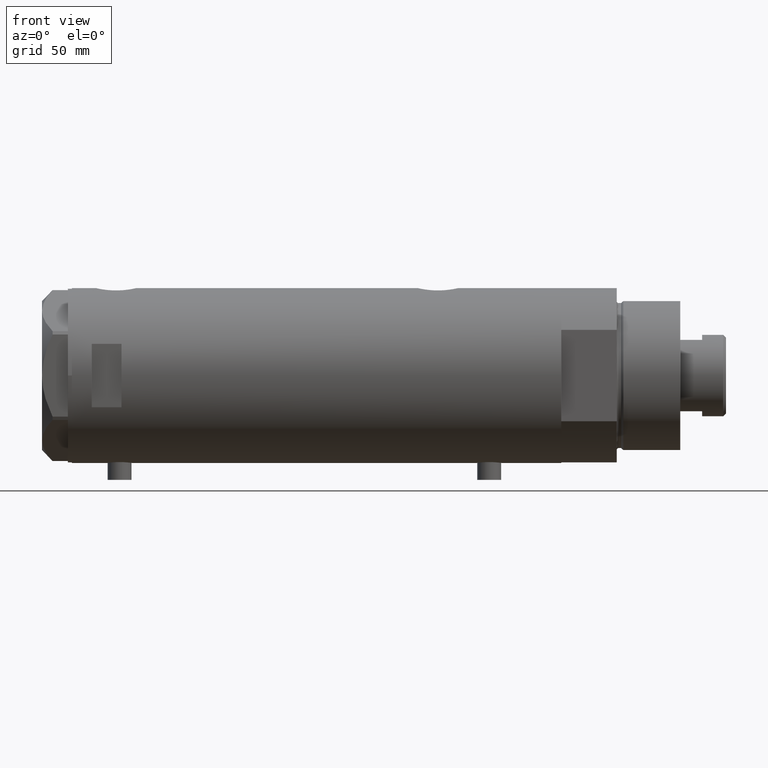
[diagram: clean part render]
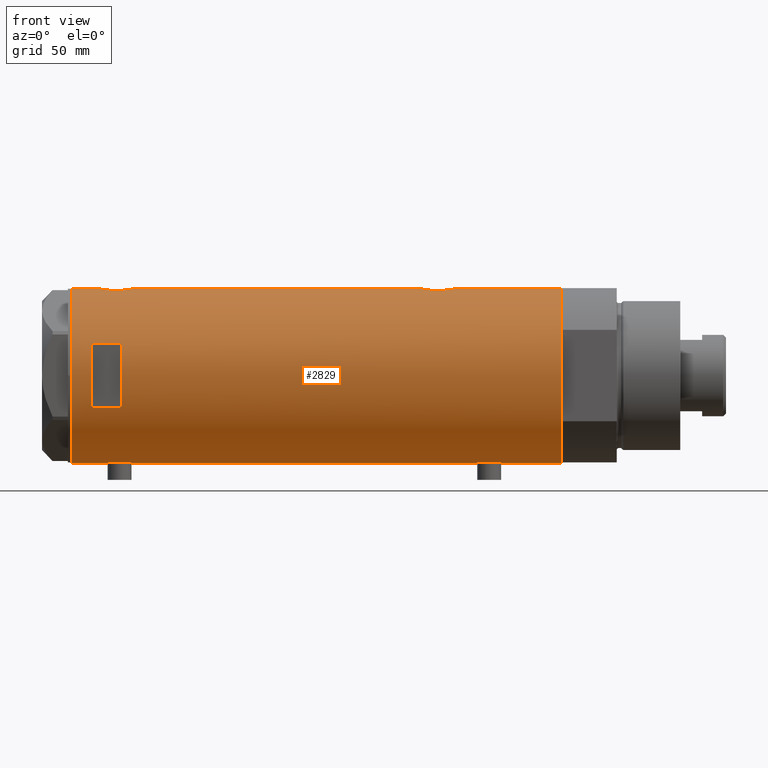
[diagram: same view with one face highlighted and labeled with its STEP entity id]
A machine part, front view. The second image highlights one B-rep face of the part: STEP entity #2829.
In plain terms, the highlighted cylindrical surface (partial cylindrical patch) has radius 44 mm, axis along (-1, -0, 0).
Its self-contained STEP definition (entity closure, byte-faithful):
#37 = CARTESIAN_POINT ( 'NONE',  ( 43.71626298452613923, -5.019105827807316622, -69.77413437979598143 ) ) ;
#64 = CARTESIAN_POINT ( 'NONE',  ( 43.35323102813806173, -7.519449998269467805, -54.49957710715733583 ) ) ;
#98 = VERTEX_POINT ( 'NONE', #1873 ) ;
#114 = CARTESIAN_POINT ( 'NONE',  ( -43.80686114384899810, -4.128296917151111245, 94.48984144871687363 ) ) ;
#120 = CARTESIAN_POINT ( 'NONE',  ( -43.66469451360046605, -5.426465874727614214, -83.77225408135791440 ) ) ;
#125 = CARTESIAN_POINT ( 'NONE',  ( -44.00000000000000000, 5.388445916248352830E-15, -123.2000000000000028 ) ) ;
#143 = CARTESIAN_POINT ( 'NONE',  ( -43.59994860325051036, -5.920144153815573240, 97.18593642430241175 ) ) ;
#147 = CARTESIAN_POINT ( 'NONE',  ( -43.71863308610073773, -4.973248429199020215, -83.09262209878829708 ) ) ;
#164 = CARTESIAN_POINT ( 'NONE',  ( -43.60904414879381363, -5.852991024272606424, 101.4015631665291437 ) ) ;
#168 = CARTESIAN_POINT ( 'NONE',  ( -43.59994860325051036, -5.920144153815573240, -88.91406357569761099 ) ) ;
#190 = CARTESIAN_POINT ( 'NONE',  ( -44.00000000000000711, -0.4080709675389188051, 92.95000000000001705 ) ) ;
#255 = CARTESIAN_POINT ( 'NONE',  ( -44.00000000000000000, 5.388445916248352830E-15, 123.2000000000000028 ) ) ;
#280 = CARTESIAN_POINT ( 'NONE',  ( 42.84860178791322483, -9.999866241079297779, 101.2339638269416326 ) ) ;
#316 = CARTESIAN_POINT ( 'NONE',  ( 43.94187300917954531, -2.283844398366606132, -70.84126046817048916 ) ) ;
#334 = CARTESIAN_POINT ( 'NONE',  ( 0.000000000000000000, 0.000000000000000000, 98.20000000000017337 ) ) ;
#340 = CARTESIAN_POINT ( 'NONE',  ( 42.99316244204495518, -9.359736474891656499, -57.56396979967825445 ) ) ;
#346 = VERTEX_POINT ( 'NONE', #2156 ) ;
#381 = VERTEX_POINT ( 'NONE', #4347 ) ;
#393 = VERTEX_POINT ( 'NONE', #864 ) ;
#399 = VECTOR ( 'NONE', #3320, 1000.000000000000000 ) ;
#413 = CARTESIAN_POINT ( 'NONE',  ( 43.13689707656755701, -8.680169016269177362, -66.10836902111202562 ) ) ;
#464 = CARTESIAN_POINT ( 'NONE',  ( 43.98543813568863214, -1.304985013906734714, 110.8365306627388378 ) ) ;
#466 = CARTESIAN_POINT ( 'NONE',  ( -43.99432382855036394, -0.8140126287075738487, 92.98957833183087018 ) ) ;
#470 = CARTESIAN_POINT ( 'NONE',  ( -43.58327167020068060, -6.041691433183235205, -85.28672449216634277 ) ) ;
#489 = ORIENTED_EDGE ( 'NONE', *, *, #1925, .F. ) ;
#497 = CARTESIAN_POINT ( 'NONE',  ( -43.57636709704393496, -6.091127289750673413, -85.48500674339014438 ) ) ;
#511 = CARTESIAN_POINT ( 'NONE',  ( 42.96858625215907779, -9.471543237354833167, 104.1244477931078194 ) ) ;
#513 = CARTESIAN_POINT ( 'NONE',  ( -43.58327167020068771, -6.041691433183236981, 100.8132755078336658 ) ) ;
#518 = CARTESIAN_POINT ( 'NONE',  ( -43.55380622335315621, -6.250277076879245719, -86.49110166609810335 ) ) ;
#539 = ORIENTED_EDGE ( 'NONE', *, *, #4128, .F. ) ;
#541 = CARTESIAN_POINT ( 'NONE',  ( -43.91347832647111460, -2.763895659397271221, -92.50938649377584966 ) ) ;
#548 = VERTEX_POINT ( 'NONE', #3199 ) ;
#559 = VECTOR ( 'NONE', #3039, 1000.000000000000000 ) ;
#561 = CARTESIAN_POINT ( 'NONE',  ( -43.95442538259509035, -2.011679190499021441, 93.27906453490220429 ) ) ;
#565 = DIRECTION ( 'NONE',  ( 0.000000000000000000, 0.000000000000000000, 1.000000000000000000 ) ) ;
#583 = ORIENTED_EDGE ( 'NONE', *, *, #1371, .F. ) ;
#601 = CARTESIAN_POINT ( 'NONE',  ( 42.92195198079052432, -9.681069926205539744, 98.31067499093484230 ) ) ;
#633 = EDGE_CURVE ( 'NONE', #1946, #98, #1272, .T. ) ;
#638 = CARTESIAN_POINT ( 'NONE',  ( 43.46477581456304051, -6.845969322274853219, 93.60355539876690045 ) ) ;
#659 = CARTESIAN_POINT ( 'NONE',  ( 43.88203303552250389, -3.235230624304763047, 91.43207386936016690 ) ) ;
#660 = CARTESIAN_POINT ( 'NONE',  ( -43.74813644611200658, -4.709999724143498767, 103.3284404394322848 ) ) ;
#676 = CARTESIAN_POINT ( 'NONE',  ( 43.07447880731470491, -8.980869115410037296, -56.65290029795897198 ) ) ;
#685 = DIRECTION ( 'NONE',  ( 1.000000000000000000, 0.000000000000000000, 0.000000000000000000 ) ) ;
#699 = CARTESIAN_POINT ( 'NONE',  ( 44.00000000000000000, 0.000000000000000000, -123.2000000000000028 ) ) ;
#733 = LINE ( 'NONE', #3830, #3136 ) ;
#734 = CARTESIAN_POINT ( 'NONE',  ( 44.00000000000000000, -0.6537011444665492554, -51.09999999999999432 ) ) ;
#783 = CARTESIAN_POINT ( 'NONE',  ( 43.50208939911752282, -6.605519787823896039, -68.61487246254429806 ) ) ;
#799 = B_SPLINE_CURVE_WITH_KNOTS ( 'NONE', 3,
 ( #4407, #4335, #844, #874, #3010, #1264, #2614, #541, #3354, #820, #1191, #3989, #1239, #1915, #2264, #3334, #1558, #168, #3671, #2670, #3644, #1573, #518, #1869, #497, #470, #899, #3285, #1895, #120, #147, #2985, #4042, #1637, #1364, #4169, #3776, #2333, #4082, #4485, #2770, #1303, #1026 ),
 .UNSPECIFIED., .F., .F.,
 ( 4, 2, 2, 1, 2, 2, 2, 2, 2, 2, 2, 2, 2, 2, 2, 2, 2, 2, 2, 2, 2, 4 ),
 ( 0.01956509074799517994, 0.02078761141254040559, 0.02139887174481301668, 0.02201013207708562777, 0.02262139240935823886, 0.02323265274163085342, 0.02445517340617609989, 0.02567769407072134635, 0.02690021473526659282, 0.02751147506753921432, 0.02812273539981183929, 0.02934525606435712738, 0.03056777672890241548, 0.03117903706117505780, 0.03179029739344770011, 0.03301281805799302638, 0.03423533872253835264, 0.03545785938708367196, 0.03668038005162899823, 0.03729164038390166136, 0.03790290071617432449, 0.03912542138071965075 ),
 .UNSPECIFIED. ) ;
#820 = CARTESIAN_POINT ( 'NONE',  ( -43.87623998657197433, -3.302247739865014964, -92.21034343519743004 ) ) ;
#844 = CARTESIAN_POINT ( 'NONE',  ( -43.99432382855035684, -0.8140126287075731826, -93.11042166816913834 ) ) ;
#856 = CIRCLE ( 'NONE', #1298, 44.00000000000000000 ) ;
#864 = CARTESIAN_POINT ( 'NONE',  ( -15.96871942267132027, -40.99999999999999289, 113.1999999999999886 ) ) ;
#867 = CARTESIAN_POINT ( 'NONE',  ( 43.24269204559828239, -8.130405600641543273, 106.7311450280699319 ) ) ;
#874 = CARTESIAN_POINT ( 'NONE',  ( -43.97755541524607281, -1.419649999726221967, -92.99011143923634393 ) ) ;
#880 = EDGE_CURVE ( 'NONE', #2077, #2675, #3847, .T. ) ;
#895 = CARTESIAN_POINT ( 'NONE',  ( -43.57636709704395628, -6.091127289750674301, 100.6149932566099068 ) ) ;
#899 = CARTESIAN_POINT ( 'NONE',  ( -43.59959777593761743, -5.922725608094073557, -84.89350688782587895 ) ) ;
#913 = CARTESIAN_POINT ( 'NONE',  ( -43.83572624786197025, -3.813948911733267888, 94.23163569779339355 ) ) ;
#921 = DIRECTION ( 'NONE',  ( 0.000000000000000000, 0.000000000000000000, 1.000000000000000000 ) ) ;
#934 = CARTESIAN_POINT ( 'NONE',  ( -43.99417593155911987, -0.8219945290704643304, 105.4093810241296296 ) ) ;
#951 = EDGE_CURVE ( 'NONE', #3827, #346, #2964, .T. ) ;
#956 = CARTESIAN_POINT ( 'NONE',  ( 42.96573602780769363, -9.487415353952517449, 97.67265455416384157 ) ) ;
#970 = EDGE_CURVE ( 'NONE', #2281, #4295, #3453, .T. ) ;
#994 = CARTESIAN_POINT ( 'NONE',  ( 44.00000000000000000, -2.119006702872526837E-15, 90.90000000000000568 ) ) ;
#996 = CARTESIAN_POINT ( 'NONE',  ( -43.94477385411916970, -2.211843467998030111, 105.0490722992286692 ) ) ;
#1018 = CARTESIAN_POINT ( 'NONE',  ( 43.39001814939471302, -7.304817421876466987, 94.06296539328327810 ) ) ;
#1026 = CARTESIAN_POINT ( 'NONE',  ( -44.00000000000000000, 4.742402805755500961E-16, -80.65000000000000568 ) ) ;
#1033 = EDGE_CURVE ( 'NONE', #3384, #2675, #4293, .T. ) ;
#1038 = CARTESIAN_POINT ( 'NONE',  ( 43.57790701154751645, -6.104591320335877924, -53.15258699105065432 ) ) ;
#1061 = CARTESIAN_POINT ( 'NONE',  ( 43.50370990764397305, -6.606474645717129945, -53.56479064715112770 ) ) ;
#1069 = VECTOR ( 'NONE', #1358, 1000.000000000000000 ) ;
#1086 = CARTESIAN_POINT ( 'NONE',  ( 43.24192112218941730, -8.134529092006104634, -66.92552229864111268 ) ) ;
#1094 = DIRECTION ( 'NONE',  ( 0.000000000000000000, 0.000000000000000000, 1.000000000000000000 ) ) ;
#1125 = VERTEX_POINT ( 'NONE', #2659 ) ;
#1172 = ORIENTED_EDGE ( 'NONE', *, *, #633, .T. ) ;
#1191 = CARTESIAN_POINT ( 'NONE',  ( -43.83572624786197025, -3.813948911733269664, -91.86836430220658656 ) ) ;
#1206 = CARTESIAN_POINT ( 'NONE',  ( 43.99999999999999289, -0.6537011444665493665, 110.9000000000000057 ) ) ;
#1225 = DIRECTION ( 'NONE',  ( 1.000000000000000000, 0.000000000000000000, 0.000000000000000000 ) ) ;
#1235 = CARTESIAN_POINT ( 'NONE',  ( -43.71863308610075904, -4.973248429199019327, 103.0073779012117541 ) ) ;
#1236 = VERTEX_POINT ( 'NONE', #4071 ) ;
#1239 = CARTESIAN_POINT ( 'NONE',  ( -43.74870614644073896, -4.704745394280564597, -91.03446487340028170 ) ) ;
#1260 = CARTESIAN_POINT ( 'NONE',  ( 43.13833976206233700, -8.672905216733552081, 105.9203292102081804 ) ) ;
#1261 = CARTESIAN_POINT ( 'NONE',  ( -43.88927795770376861, -3.124736516396338981, 93.78332595076190614 ) ) ;
#1264 = CARTESIAN_POINT ( 'NONE',  ( -43.95442538259509746, -2.011679190499022774, -92.82093546509779003 ) ) ;
#1272 = LINE ( 'NONE', #3297, #399 ) ;
#1298 = AXIS2_PLACEMENT_3D ( 'NONE', #3699, #1924, #1225 ) ;
#1303 = CARTESIAN_POINT ( 'NONE',  ( -44.00000000000000711, -0.4134142287044829667, -80.65000000000003411 ) ) ;
#1320 = CARTESIAN_POINT ( 'NONE',  ( 43.61181667275830875, -5.838254419127776096, 92.77455890582506015 ) ) ;
#1321 = CARTESIAN_POINT ( 'NONE',  ( -43.80623767923739820, -4.134861581628530125, 103.9043636726069764 ) ) ;
#1332 = DIRECTION ( 'NONE',  ( -0.000000000000000000, -0.000000000000000000, -1.000000000000000000 ) ) ;
#1338 = CARTESIAN_POINT ( 'NONE',  ( 43.77905627191557159, -4.445085099228552217, 91.91859165683966637 ) ) ;
#1345 = LINE ( 'NONE', #1370, #4031 ) ;
#1358 = DIRECTION ( 'NONE',  ( 0.000000000000000000, 0.000000000000000000, 1.000000000000000000 ) ) ;
#1364 = CARTESIAN_POINT ( 'NONE',  ( -43.88932649443424339, -3.137583818903200594, -81.47900961940457876 ) ) ;
#1370 = CARTESIAN_POINT ( 'NONE',  ( -44.00000000000000000, 5.388445916248352830E-15, -123.2000000000000028 ) ) ;
#1371 = EDGE_CURVE ( 'NONE', #3688, #3772, #1648, .T. ) ;
#1407 = CARTESIAN_POINT ( 'NONE',  ( 43.27890888111422640, -7.936045294464967093, -55.00681563342806868 ) ) ;
#1409 = DIRECTION ( 'NONE',  ( 0.000000000000000000, 0.000000000000000000, 1.000000000000000000 ) ) ;
#1416 = CARTESIAN_POINT ( 'NONE',  ( 15.96871942267132027, -40.99999999999999289, 98.19999999999998863 ) ) ;
#1421 = CARTESIAN_POINT ( 'NONE',  ( 44.00000000000000000, -3.917104602093038540E-21, 110.9000000000000057 ) ) ;
#1430 = CARTESIAN_POINT ( 'NONE',  ( 42.86369059155249062, -9.935849517229280892, -62.40637410018199915 ) ) ;
#1458 = CARTESIAN_POINT ( 'NONE',  ( 43.71528002050703066, -5.005885132985644859, -52.43693693285515423 ) ) ;
#1479 = CARTESIAN_POINT ( 'NONE',  ( 42.92195198079052432, -9.681069926205545073, -63.68932500906514349 ) ) ;
#1527 = AXIS2_PLACEMENT_3D ( 'NONE', #4013, #565, #4356 ) ;
#1532 = CARTESIAN_POINT ( 'NONE',  ( 43.39114022679085281, -7.298186114522533074, 107.7441727949206438 ) ) ;
#1558 = CARTESIAN_POINT ( 'NONE',  ( -43.60943079847655213, -5.850114217193378430, -89.10921875926607072 ) ) ;
#1569 = CARTESIAN_POINT ( 'NONE',  ( 42.92612181419235640, -9.662173761604311295, 103.4979978960971465 ) ) ;
#1570 = CARTESIAN_POINT ( 'NONE',  ( -43.64013512596971367, -5.618144550806293047, 101.9688425437316539 ) ) ;
#1573 = CARTESIAN_POINT ( 'NONE',  ( -43.55388615229803406, -6.249720082677240107, -87.31732514111985211 ) ) ;
#1584 = EDGE_LOOP ( 'NONE', ( #3678, #4486, #1172, #539, #2154, #3238, #2668, #4057, #2436, #2714, #3896, #2968 ) ) ;
#1614 = CARTESIAN_POINT ( 'NONE',  ( -43.97029046111977379, -1.628482392291941805, 105.2375861979205922 ) ) ;
#1637 = CARTESIAN_POINT ( 'NONE',  ( -43.83513771791773905, -3.820747781112549646, -81.93678981703629916 ) ) ;
#1648 = CIRCLE ( 'NONE', #3923, 44.00000000000000000 ) ;
#1678 = CARTESIAN_POINT ( 'NONE',  ( 43.24192112218942441, -8.134529092006104634, 95.07447770135891574 ) ) ;
#1680 = CARTESIAN_POINT ( 'NONE',  ( -43.88932649443422918, -3.137583818903200594, 104.6209903805954298 ) ) ;
#1692 = CARTESIAN_POINT ( 'NONE',  ( 15.96871942267131672, -40.99999999999999289, -123.2000000000000028 ) ) ;
#1717 = CARTESIAN_POINT ( 'NONE',  ( 43.98503203903424463, -1.316644100880400403, -71.03472955295633540 ) ) ;
#1760 = DIRECTION ( 'NONE',  ( 0.000000000000000000, 0.000000000000000000, 1.000000000000000000 ) ) ;
#1766 = CARTESIAN_POINT ( 'NONE',  ( 44.00000000000000000, -3.917167710965456221E-21, -51.10000000000000853 ) ) ;
#1782 = EDGE_CURVE ( 'NONE', #548, #393, #856, .T. ) ;
#1813 = CARTESIAN_POINT ( 'NONE',  ( 43.39001814939470592, -7.304817421876451888, -67.93703460671676453 ) ) ;
#1865 = CARTESIAN_POINT ( 'NONE',  ( 43.57790701154752355, -6.104591320335876148, 108.8474130089493457 ) ) ;
#1869 = CARTESIAN_POINT ( 'NONE',  ( -43.55964145621771877, -6.209995197331128480, -86.08476386616429465 ) ) ;
#1873 = CARTESIAN_POINT ( 'NONE',  ( 44.00000000000000000, -1.742910476879209922E-15, -71.10000000000000853 ) ) ;
#1895 = CARTESIAN_POINT ( 'NONE',  ( -43.64013512596970656, -5.618144550806293047, -84.13115745626835462 ) ) ;
#1897 = EDGE_CURVE ( 'NONE', #3772, #548, #4092, .T. ) ;
#1901 = ORIENTED_EDGE ( 'NONE', *, *, #1897, .F. ) ;
#1910 = CARTESIAN_POINT ( 'NONE',  ( -43.55981666146651321, -6.208773019004409477, 98.37562000806386209 ) ) ;
#1915 = CARTESIAN_POINT ( 'NONE',  ( -43.71916086763248899, -4.968610719017467758, -90.71335998854627292 ) ) ;
#1924 = DIRECTION ( 'NONE',  ( -0.000000000000000000, 0.000000000000000000, -1.000000000000000000 ) ) ;
#1925 = EDGE_CURVE ( 'NONE', #393, #3688, #2694, .T. ) ;
#1944 = CARTESIAN_POINT ( 'NONE',  ( -15.96871942267132027, -40.99999999999999289, 98.19999999999998863 ) ) ;
#1946 = VERTEX_POINT ( 'NONE', #3446 ) ;
#1989 = CARTESIAN_POINT ( 'NONE',  ( 43.07321175413310499, -8.986876637256992595, 96.46571798011248688 ) ) ;
#1990 = CARTESIAN_POINT ( 'NONE',  ( -43.83513771791773195, -3.820747781112552754, 104.1632101829637378 ) ) ;
#2011 = CARTESIAN_POINT ( 'NONE',  ( 43.57553740812846144, -6.102230194686623754, 92.97100344011330719 ) ) ;
#2033 = CARTESIAN_POINT ( 'NONE',  ( -44.00000000000000711, -0.4134142287044841879, 105.4500000000000313 ) ) ;
#2050 = DIRECTION ( 'NONE',  ( 0.000000000000000000, 0.000000000000000000, 1.000000000000000000 ) ) ;
#2051 = CARTESIAN_POINT ( 'NONE',  ( 44.00000000000000000, -0.6628808997490054367, 90.90000000000001990 ) ) ;
#2054 = ORIENTED_EDGE ( 'NONE', *, *, #1782, .F. ) ;
#2072 = AXIS2_PLACEMENT_3D ( 'NONE', #4547, #1409, #2809 ) ;
#2074 = CARTESIAN_POINT ( 'NONE',  ( 42.89003040145176726, -9.821289533110936887, -59.13508371670006625 ) ) ;
#2077 = VERTEX_POINT ( 'NONE', #1421 ) ;
#2104 = CARTESIAN_POINT ( 'NONE',  ( 43.39114022679083860, -7.298186114522538404, -54.25582720507937751 ) ) ;
#2128 = CARTESIAN_POINT ( 'NONE',  ( 43.57553740812844723, -6.102230194686620202, -69.02899655988672123 ) ) ;
#2151 = CARTESIAN_POINT ( 'NONE',  ( 43.92776409818818451, -2.602555515054471247, -51.42196650712919137 ) ) ;
#2154 = ORIENTED_EDGE ( 'NONE', *, *, #970, .T. ) ;
#2156 = CARTESIAN_POINT ( 'NONE',  ( -44.00000000000000000, 4.945856149313706956E-16, 105.4500000000000171 ) ) ;
#2180 = CARTESIAN_POINT ( 'NONE',  ( 43.92391465552168484, -2.605621203777297001, -70.76018015101780634 ) ) ;
#2231 = CARTESIAN_POINT ( 'NONE',  ( -43.57664920749030557, -6.089110472216500369, 97.77636913130585583 ) ) ;
#2236 = FACE_BOUND ( 'NONE', #2845, .T. ) ;
#2260 = CARTESIAN_POINT ( 'NONE',  ( -43.97059312650997498, -1.620278982928819556, 93.16021308614132579 ) ) ;
#2264 = CARTESIAN_POINT ( 'NONE',  ( -43.66524845950889500, -5.422010366683132965, -90.03538043352982356 ) ) ;
#2281 = VERTEX_POINT ( 'NONE', #4334 ) ;
#2283 = CARTESIAN_POINT ( 'NONE',  ( 43.71528002050701645, -5.005885132985632424, 109.5630630671448813 ) ) ;
#2305 = CARTESIAN_POINT ( 'NONE',  ( -44.00000000000000000, 5.388445781982983516E-15, 92.95000000000000284 ) ) ;
#2325 = B_SPLINE_CURVE_WITH_KNOTS ( 'NONE', 3,
 ( #3612, #1206, #464, #3636, #4375, #2663, #3277, #2283, #4401, #1865, #4350, #1532, #2609, #4006, #867, #1260, #4052, #3665, #511, #1569, #2980, #3433, #2365, #280, #3070, #4100, #601, #956, #1989, #2387, #1678, #2740, #2348, #1018, #638, #4076, #2011, #1320, #3813, #1338, #3730, #659, #3045, #3413, #3792, #2051, #994 ),
 .UNSPECIFIED., .F., .F.,
 ( 4, 2, 2, 2, 2, 2, 2, 2, 2, 2, 1, 2, 2, 2, 2, 2, 2, 2, 2, 2, 2, 2, 2, 4 ),
 ( 0.03136730421198211799, 0.03332724096696803445, 0.03528717772195395785, 0.03626714609944691609, 0.03724711447693987432, 0.03920705123192579078, 0.04018701960941873513, 0.04116698798691167949, 0.04312692474189759595, 0.04410689311939056112, 0.04508686149688351935, 0.04606682987437648452, 0.04704679825186944275, 0.04900673500685531758, 0.05096667176184120629, 0.05292660851682708112, 0.05390657689432002547, 0.05488654527181296983, 0.05586651364930590724, 0.05684648202679884466, 0.05880641878178471949, 0.05978638715927767078, 0.06076635553677062207, 0.06272629229175652465 ),
 .UNSPECIFIED. ) ;
#2333 = CARTESIAN_POINT ( 'NONE',  ( -43.95404166778754984, -2.020054257598467018, -80.98191054514347798 ) ) ;
#2348 = CARTESIAN_POINT ( 'NONE',  ( 43.35257225115236679, -7.523216248090024649, 94.30394696407654465 ) ) ;
#2365 = CARTESIAN_POINT ( 'NONE',  ( 42.85249883256043546, -9.983208936152870194, 101.5657221654182081 ) ) ;
#2387 = CARTESIAN_POINT ( 'NONE',  ( 43.13689707656756411, -8.680169016269172033, 95.89163097888801701 ) ) ;
#2433 = CARTESIAN_POINT ( 'NONE',  ( 43.68175117880464597, -5.289576318274436417, -52.60722456708441541 ) ) ;
#2436 = ORIENTED_EDGE ( 'NONE', *, *, #4532, .F. ) ;
#2458 = CARTESIAN_POINT ( 'NONE',  ( 42.84850870634925712, -10.00026508230968858, -61.75583915121742251 ) ) ;
#2487 = CARTESIAN_POINT ( 'NONE',  ( 43.27861175590267351, -7.937636171351968528, -67.19102867990997652 ) ) ;
#2532 = CARTESIAN_POINT ( 'NONE',  ( 43.80655905412561424, -4.132395729537631901, -51.98794673806236233 ) ) ;
#2543 = VECTOR ( 'NONE', #1332, 1000.000000000000000 ) ;
#2567 = CARTESIAN_POINT ( 'NONE',  ( -43.64064219598290606, -5.614224114468903792, 96.42314510380529669 ) ) ;
#2590 = CARTESIAN_POINT ( 'NONE',  ( -43.60943079847654502, -5.850114217193380206, 96.99078124073395202 ) ) ;
#2609 = CARTESIAN_POINT ( 'NONE',  ( 43.35323102813806884, -7.519449998269471358, 107.5004228928426784 ) ) ;
#2614 = CARTESIAN_POINT ( 'NONE',  ( -43.93596008603758207, -2.395372424984026694, -92.68349180530613296 ) ) ;
#2636 = CARTESIAN_POINT ( 'NONE',  ( -43.93596008603759628, -2.395372424984027138, 93.41650819469390399 ) ) ;
#2659 = CARTESIAN_POINT ( 'NONE',  ( -44.00000000000000000, 5.388445781982983516E-15, -93.15000000000000568 ) ) ;
#2663 = CARTESIAN_POINT ( 'NONE',  ( 43.80655905412561424, -4.132395729537624796, 110.0120532619376235 ) ) ;
#2668 = ORIENTED_EDGE ( 'NONE', *, *, #880, .T. ) ;
#2670 = CARTESIAN_POINT ( 'NONE',  ( -43.57664920749031268, -6.089110472216499481, -88.32363086869412427 ) ) ;
#2675 = VERTEX_POINT ( 'NONE', #3745 ) ;
#2694 = LINE ( 'NONE', #3364, #2543 ) ;
#2714 = ORIENTED_EDGE ( 'NONE', *, *, #951, .F. ) ;
#2715 = B_SPLINE_CURVE_WITH_KNOTS ( 'NONE', 3,
 ( #1766, #734, #3150, #2151, #4186, #2532, #4545, #1458, #2433, #1038, #1061, #2104, #64, #1407, #4521, #3563, #676, #340, #2788, #3174, #2074, #2855, #3494, #2806, #2458, #1430, #1479, #4209, #4234, #413, #1086, #2487, #3883, #1813, #3222, #783, #2128, #3543, #37, #3203, #4262, #4280, #2180, #316, #1717, #3128, #3681 ),
 .UNSPECIFIED., .F., .F.,
 ( 4, 2, 2, 2, 2, 2, 2, 2, 2, 2, 1, 2, 2, 2, 2, 2, 2, 2, 2, 2, 2, 2, 2, 4 ),
 ( 0.03136730421198213187, 0.03332724096696806221, 0.03528717772195399255, 0.03626714609944695078, 0.03724711447693991595, 0.03920705123192583241, 0.04018701960941878371, 0.04116698798691173500, 0.04312692474189763758, 0.04410689311939058888, 0.04508686149688354017, 0.04606682987437649146, 0.04704679825186944275, 0.04900673500685532452, 0.05096667176184120629, 0.05292660851682708806, 0.05390657689432004629, 0.05488654527181299758, 0.05586651364930594887, 0.05684648202679890711, 0.05880641878178481663, 0.05978638715927775404, 0.06076635553677070534, 0.06272629229175658017 ),
 .UNSPECIFIED. ) ;
#2740 = CARTESIAN_POINT ( 'NONE',  ( 43.27861175590268061, -7.937636171351964975, 94.80897132009003769 ) ) ;
#2742 = CARTESIAN_POINT ( 'NONE',  ( -43.95404166778756405, -2.020054257598453695, 105.1180894548565590 ) ) ;
#2770 = CARTESIAN_POINT ( 'NONE',  ( -43.99417593155913409, -0.8219945290704695484, -80.69061897587040733 ) ) ;
#2788 = CARTESIAN_POINT ( 'NONE',  ( 42.96858625215907779, -9.471543237354843825, -57.87555220689220192 ) ) ;
#2806 = CARTESIAN_POINT ( 'NONE',  ( 42.84860178791322483, -9.999866241079299556, -60.76603617305838156 ) ) ;
#2809 = DIRECTION ( 'NONE',  ( 1.000000000000000000, 0.000000000000000000, 0.000000000000000000 ) ) ;
#2829 = ADVANCED_FACE ( 'NONE', ( #3712, #2236 ), #2939, .T. ) ;
#2845 = EDGE_LOOP ( 'NONE', ( #583, #489, #2054, #1901 ) ) ;
#2851 = CARTESIAN_POINT ( 'NONE',  ( 44.00000000000000000, -2.119006702872526837E-15, 90.90000000000000568 ) ) ;
#2855 = CARTESIAN_POINT ( 'NONE',  ( 42.86761451923558042, -9.918101748202660772, -59.78132476450375066 ) ) ;
#2887 = EDGE_CURVE ( 'NONE', #1125, #381, #799, .T. ) ;
#2909 = CARTESIAN_POINT ( 'NONE',  ( -43.74870614644074607, -4.704745394280565485, 95.06553512659974103 ) ) ;
#2939 = CYLINDRICAL_SURFACE ( 'NONE', #1527, 44.00000000000000000 ) ;
#2956 = CARTESIAN_POINT ( 'NONE',  ( -43.55388615229804117, -6.249720082677240107, 98.78267485888017063 ) ) ;
#2964 = B_SPLINE_CURVE_WITH_KNOTS ( 'NONE', 3,
 ( #2305, #190, #466, #3330, #2260, #561, #2636, #3279, #1261, #4054, #913, #114, #2909, #4331, #4307, #2567, #2590, #143, #3985, #2231, #1910, #2956, #4037, #4351, #895, #513, #3668, #164, #1570, #4380, #1235, #660, #1321, #1990, #1680, #4481, #996, #2742, #1614, #3414, #934, #2033, #3793 ),
 .UNSPECIFIED., .F., .F.,
 ( 4, 2, 2, 1, 2, 2, 2, 2, 2, 2, 2, 2, 2, 2, 2, 2, 2, 2, 2, 2, 2, 4 ),
 ( 0.01956509074799517994, 0.02078761141254040559, 0.02139887174481301668, 0.02201013207708562777, 0.02262139240935823886, 0.02323265274163085342, 0.02445517340617609642, 0.02567769407072134288, 0.02690021473526658935, 0.02751147506753921085, 0.02812273539981183582, 0.02934525606435712392, 0.03056777672890240855, 0.03117903706117505433, 0.03179029739344770011, 0.03301281805799302638, 0.03423533872253834570, 0.03545785938708367196, 0.03668038005162899129, 0.03729164038390166136, 0.03790290071617431755, 0.03912542138071964382 ),
 .UNSPECIFIED. ) ;
#2968 = ORIENTED_EDGE ( 'NONE', *, *, #2887, .F. ) ;
#2980 = CARTESIAN_POINT ( 'NONE',  ( 42.89003040145177437, -9.821289533110936887, 102.8649162832999338 ) ) ;
#2985 = CARTESIAN_POINT ( 'NONE',  ( -43.74813644611201369, -4.709999724143497879, -82.77155956056772368 ) ) ;
#3010 = CARTESIAN_POINT ( 'NONE',  ( -43.97059312650996787, -1.620278982928820444, -92.93978691385871116 ) ) ;
#3039 = DIRECTION ( 'NONE',  ( 0.000000000000000000, 0.000000000000000000, 1.000000000000000000 ) ) ;
#3045 = CARTESIAN_POINT ( 'NONE',  ( 43.92391465552169905, -2.605621203777302775, 91.23981984898226472 ) ) ;
#3065 = EDGE_CURVE ( 'NONE', #1236, #1946, #3936, .T. ) ;
#3070 = CARTESIAN_POINT ( 'NONE',  ( 42.84850870634927844, -10.00026508230968147, 100.2441608487826130 ) ) ;
#3071 = CARTESIAN_POINT ( 'NONE',  ( 44.00000000000000000, 0.000000000000000000, -123.2000000000000028 ) ) ;
#3128 = CARTESIAN_POINT ( 'NONE',  ( 43.99999999999999289, -0.6628808997490076571, -71.09999999999999432 ) ) ;
#3136 = VECTOR ( 'NONE', #2050, 1000.000000000000000 ) ;
#3150 = CARTESIAN_POINT ( 'NONE',  ( 43.98543813568861793, -1.304985013906732716, -51.16346933726119772 ) ) ;
#3174 = CARTESIAN_POINT ( 'NONE',  ( 42.92612181419236350, -9.662173761604318400, -58.50200210390288191 ) ) ;
#3199 = CARTESIAN_POINT ( 'NONE',  ( 15.96871942267132027, -40.99999999999999289, 113.1999999999999886 ) ) ;
#3203 = CARTESIAN_POINT ( 'NONE',  ( 43.77905627191558580, -4.445085099228549552, -70.08140834316036205 ) ) ;
#3222 = CARTESIAN_POINT ( 'NONE',  ( 43.46477581456304051, -6.845969322274835456, -68.39644460123312797 ) ) ;
#3238 = ORIENTED_EDGE ( 'NONE', *, *, #3967, .F. ) ;
#3253 = CARTESIAN_POINT ( 'NONE',  ( -44.00000000000000000, 5.388445781982983516E-15, 92.95000000000000284 ) ) ;
#3277 = CARTESIAN_POINT ( 'NONE',  ( 43.77763691689008851, -4.427538730370032205, 109.8724271220806941 ) ) ;
#3279 = CARTESIAN_POINT ( 'NONE',  ( -43.91347832647110039, -2.763895659397272553, 93.59061350622417308 ) ) ;
#3285 = CARTESIAN_POINT ( 'NONE',  ( -43.60904414879381363, -5.852991024272605536, -84.69843683347096430 ) ) ;
#3297 = CARTESIAN_POINT ( 'NONE',  ( 44.00000000000000000, 0.000000000000000000, -123.2000000000000028 ) ) ;
#3320 = DIRECTION ( 'NONE',  ( 0.000000000000000000, 0.000000000000000000, 1.000000000000000000 ) ) ;
#3330 = CARTESIAN_POINT ( 'NONE',  ( -43.97755541524607992, -1.419649999726222633, 93.10988856076367881 ) ) ;
#3334 = CARTESIAN_POINT ( 'NONE',  ( -43.64064219598290606, -5.614224114468904681, -89.67685489619474026 ) ) ;
#3336 = LINE ( 'NONE', #125, #3948 ) ;
#3354 = CARTESIAN_POINT ( 'NONE',  ( -43.88927795770376861, -3.124736516396338093, -92.31667404923808817 ) ) ;
#3364 = CARTESIAN_POINT ( 'NONE',  ( -15.96871942267131672, -40.99999999999999289, -123.2000000000000028 ) ) ;
#3384 = VERTEX_POINT ( 'NONE', #255 ) ;
#3413 = CARTESIAN_POINT ( 'NONE',  ( 43.94187300917955952, -2.283844398366603912, 91.15873953182952505 ) ) ;
#3414 = CARTESIAN_POINT ( 'NONE',  ( -43.97729452866928312, -1.427712738744850496, 105.2882290744342413 ) ) ;
#3433 = CARTESIAN_POINT ( 'NONE',  ( 42.86761451923558042, -9.918101748202657220, 102.2186752354962636 ) ) ;
#3446 = CARTESIAN_POINT ( 'NONE',  ( 44.00000000000000000, 0.000000000000000000, -123.2000000000000028 ) ) ;
#3453 = LINE ( 'NONE', #3071, #1069 ) ;
#3478 = EDGE_CURVE ( 'NONE', #381, #3827, #733, .T. ) ;
#3494 = CARTESIAN_POINT ( 'NONE',  ( 42.85249883256042835, -9.983208936152877300, -60.43427783458179192 ) ) ;
#3527 = CARTESIAN_POINT ( 'NONE',  ( 0.000000000000000000, 0.000000000000000000, -123.2000000000000028 ) ) ;
#3543 = CARTESIAN_POINT ( 'NONE',  ( 43.61181667275830165, -5.838254419127786754, -69.22544109417493985 ) ) ;
#3563 = CARTESIAN_POINT ( 'NONE',  ( 43.13833976206234411, -8.672905216733562739, -56.07967078979188358 ) ) ;
#3612 = CARTESIAN_POINT ( 'NONE',  ( 44.00000000000000000, -3.917104602093038540E-21, 110.9000000000000057 ) ) ;
#3636 = CARTESIAN_POINT ( 'NONE',  ( 43.92776409818817740, -2.602555515054468582, 110.5780334928707447 ) ) ;
#3644 = CARTESIAN_POINT ( 'NONE',  ( -43.55981666146652742, -6.208773019004409477, -87.72437999193618907 ) ) ;
#3665 = CARTESIAN_POINT ( 'NONE',  ( 42.99316244204494808, -9.359736474891649394, 104.4360302003217527 ) ) ;
#3668 = CARTESIAN_POINT ( 'NONE',  ( -43.59959777593762453, -5.922725608094073557, 101.2064931121741722 ) ) ;
#3671 = CARTESIAN_POINT ( 'NONE',  ( -43.58358352828439308, -6.039443007521657414, -88.52163098385740625 ) ) ;
#3678 = ORIENTED_EDGE ( 'NONE', *, *, #4406, .F. ) ;
#3681 = CARTESIAN_POINT ( 'NONE',  ( 44.00000000000000000, -1.742910476879209922E-15, -71.10000000000000853 ) ) ;
#3688 = VERTEX_POINT ( 'NONE', #1944 ) ;
#3699 = CARTESIAN_POINT ( 'NONE',  ( 0.000000000000000000, 0.000000000000000000, 113.1999999999999886 ) ) ;
#3712 = FACE_OUTER_BOUND ( 'NONE', #1584, .T. ) ;
#3730 = CARTESIAN_POINT ( 'NONE',  ( 43.85817087158036998, -3.542878095418176887, 91.54296338884479667 ) ) ;
#3745 = CARTESIAN_POINT ( 'NONE',  ( 44.00000000000000000, 0.000000000000000000, 123.2000000000000028 ) ) ;
#3772 = VERTEX_POINT ( 'NONE', #1416 ) ;
#3776 = CARTESIAN_POINT ( 'NONE',  ( -43.94477385411918391, -2.211843467998029222, -81.05092770077139619 ) ) ;
#3792 = CARTESIAN_POINT ( 'NONE',  ( 43.98503203903425884, -1.316644100880397072, 90.96527044704372145 ) ) ;
#3793 = CARTESIAN_POINT ( 'NONE',  ( -44.00000000000000000, 4.945856149313706956E-16, 105.4500000000000171 ) ) ;
#3813 = CARTESIAN_POINT ( 'NONE',  ( 43.71626298452613923, -5.019105827807311293, 92.22586562020403278 ) ) ;
#3827 = VERTEX_POINT ( 'NONE', #3253 ) ;
#3830 = CARTESIAN_POINT ( 'NONE',  ( -44.00000000000000000, 5.388445916248352830E-15, -123.2000000000000028 ) ) ;
#3847 = LINE ( 'NONE', #699, #4219 ) ;
#3879 = DIRECTION ( 'NONE',  ( 1.776356839400250465E-15, 1.000000000000000000, 4.731064025391292434E-15 ) ) ;
#3883 = CARTESIAN_POINT ( 'NONE',  ( 43.35257225115238100, -7.523216248090028202, -67.69605303592346957 ) ) ;
#3896 = ORIENTED_EDGE ( 'NONE', *, *, #3478, .F. ) ;
#3923 = AXIS2_PLACEMENT_3D ( 'NONE', #334, #4206, #3879 ) ;
#3936 = CIRCLE ( 'NONE', #4015, 44.00000000000000000 ) ;
#3948 = VECTOR ( 'NONE', #921, 1000.000000000000000 ) ;
#3967 = EDGE_CURVE ( 'NONE', #2077, #4295, #2325, .T. ) ;
#3985 = CARTESIAN_POINT ( 'NONE',  ( -43.58358352828437177, -6.039443007521655638, 97.57836901614263070 ) ) ;
#3989 = CARTESIAN_POINT ( 'NONE',  ( -43.80686114384899810, -4.128296917151111245, -91.61015855128310648 ) ) ;
#4006 = CARTESIAN_POINT ( 'NONE',  ( 43.27890888111421219, -7.936045294464967093, 106.9931843665719100 ) ) ;
#4013 = CARTESIAN_POINT ( 'NONE',  ( 0.000000000000000000, 0.000000000000000000, -123.2000000000000028 ) ) ;
#4015 = AXIS2_PLACEMENT_3D ( 'NONE', #3527, #1094, #685 ) ;
#4031 = VECTOR ( 'NONE', #4110, 1000.000000000000000 ) ;
#4037 = CARTESIAN_POINT ( 'NONE',  ( -43.55380622335317042, -6.250277076879246607, 99.60889833390191939 ) ) ;
#4042 = CARTESIAN_POINT ( 'NONE',  ( -43.80623767923740530, -4.134861581628530125, -82.19563632739304637 ) ) ;
#4052 = CARTESIAN_POINT ( 'NONE',  ( 43.07447880731471201, -8.980869115410033743, 105.3470997020410636 ) ) ;
#4054 = CARTESIAN_POINT ( 'NONE',  ( -43.87623998657198143, -3.302247739865013632, 93.88965656480257849 ) ) ;
#4057 = ORIENTED_EDGE ( 'NONE', *, *, #1033, .F. ) ;
#4071 = CARTESIAN_POINT ( 'NONE',  ( -44.00000000000000000, 5.388445916248352830E-15, -123.2000000000000028 ) ) ;
#4076 = CARTESIAN_POINT ( 'NONE',  ( 43.50208939911752992, -6.605519787823896039, 93.38512753745570194 ) ) ;
#4082 = CARTESIAN_POINT ( 'NONE',  ( -43.97029046111975958, -1.628482392291955128, -80.86241380207945895 ) ) ;
#4092 = LINE ( 'NONE', #1692, #559 ) ;
#4100 = CARTESIAN_POINT ( 'NONE',  ( 42.86369059155247641, -9.935849517229275563, 99.59362589981802216 ) ) ;
#4110 = DIRECTION ( 'NONE',  ( 0.000000000000000000, 0.000000000000000000, 1.000000000000000000 ) ) ;
#4128 = EDGE_CURVE ( 'NONE', #2281, #98, #2715, .T. ) ;
#4169 = CARTESIAN_POINT ( 'NONE',  ( -43.91398925748691795, -2.775454910411441656, -81.28529224318936031 ) ) ;
#4186 = CARTESIAN_POINT ( 'NONE',  ( 43.88549648731375896, -3.229309612650775652, -51.61335697513614207 ) ) ;
#4206 = DIRECTION ( 'NONE',  ( -0.000000000000000000, -4.625929269271481378E-15, 1.000000000000000000 ) ) ;
#4209 = CARTESIAN_POINT ( 'NONE',  ( 42.96573602780769363, -9.487415353952515673, -64.32734544583620107 ) ) ;
#4219 = VECTOR ( 'NONE', #1760, 1000.000000000000000 ) ;
#4234 = CARTESIAN_POINT ( 'NONE',  ( 43.07321175413309078, -8.986876637256996148, -65.53428201988756996 ) ) ;
#4262 = CARTESIAN_POINT ( 'NONE',  ( 43.85817087158036287, -3.542878095418171558, -70.45703661115524596 ) ) ;
#4280 = CARTESIAN_POINT ( 'NONE',  ( 43.88203303552250389, -3.235230624304761715, -70.56792613063983310 ) ) ;
#4293 = CIRCLE ( 'NONE', #2072, 44.00000000000000000 ) ;
#4295 = VERTEX_POINT ( 'NONE', #2851 ) ;
#4307 = CARTESIAN_POINT ( 'NONE',  ( -43.66524845950890210, -5.422010366683142735, 96.06461956647019917 ) ) ;
#4331 = CARTESIAN_POINT ( 'NONE',  ( -43.71916086763249609, -4.968610719017477528, 95.38664001145379245 ) ) ;
#4334 = CARTESIAN_POINT ( 'NONE',  ( 44.00000000000000000, -3.917167710965456221E-21, -51.10000000000000853 ) ) ;
#4335 = CARTESIAN_POINT ( 'NONE',  ( -43.99999999999998579, -0.4080709675389182500, -93.15000000000000568 ) ) ;
#4347 = CARTESIAN_POINT ( 'NONE',  ( -44.00000000000000000, 4.742402805755500961E-16, -80.65000000000000568 ) ) ;
#4350 = CARTESIAN_POINT ( 'NONE',  ( 43.50370990764398016, -6.606474645717128169, 108.4352093528488865 ) ) ;
#4351 = CARTESIAN_POINT ( 'NONE',  ( -43.55964145621771877, -6.209995197331127592, 100.0152361338357565 ) ) ;
#4356 = DIRECTION ( 'NONE',  ( 1.000000000000000000, 0.000000000000000000, 0.000000000000000000 ) ) ;
#4375 = CARTESIAN_POINT ( 'NONE',  ( 43.88549648731377317, -3.229309612650767658, 110.3866430248638864 ) ) ;
#4380 = CARTESIAN_POINT ( 'NONE',  ( -43.66469451360045895, -5.426465874727613325, 102.3277459186421083 ) ) ;
#4401 = CARTESIAN_POINT ( 'NONE',  ( 43.68175117880464597, -5.289576318274434641, 109.3927754329155846 ) ) ;
#4406 = EDGE_CURVE ( 'NONE', #1236, #1125, #3336, .T. ) ;
#4407 = CARTESIAN_POINT ( 'NONE',  ( -44.00000000000000000, 5.388445781982983516E-15, -93.15000000000000568 ) ) ;
#4481 = CARTESIAN_POINT ( 'NONE',  ( -43.91398925748692506, -2.775454910411446097, 104.8147077568106482 ) ) ;
#4485 = CARTESIAN_POINT ( 'NONE',  ( -43.97729452866927602, -1.427712738744856047, -80.81177092556575303 ) ) ;
#4486 = ORIENTED_EDGE ( 'NONE', *, *, #3065, .T. ) ;
#4521 = CARTESIAN_POINT ( 'NONE',  ( 43.24269204559828950, -8.130405600641552155, -55.26885497193006103 ) ) ;
#4532 = EDGE_CURVE ( 'NONE', #346, #3384, #1345, .T. ) ;
#4545 = CARTESIAN_POINT ( 'NONE',  ( 43.77763691689010983, -4.427538730370041087, -52.12757287791930594 ) ) ;
#4547 = CARTESIAN_POINT ( 'NONE',  ( 0.000000000000000000, 0.000000000000000000, 123.2000000000000028 ) ) ;